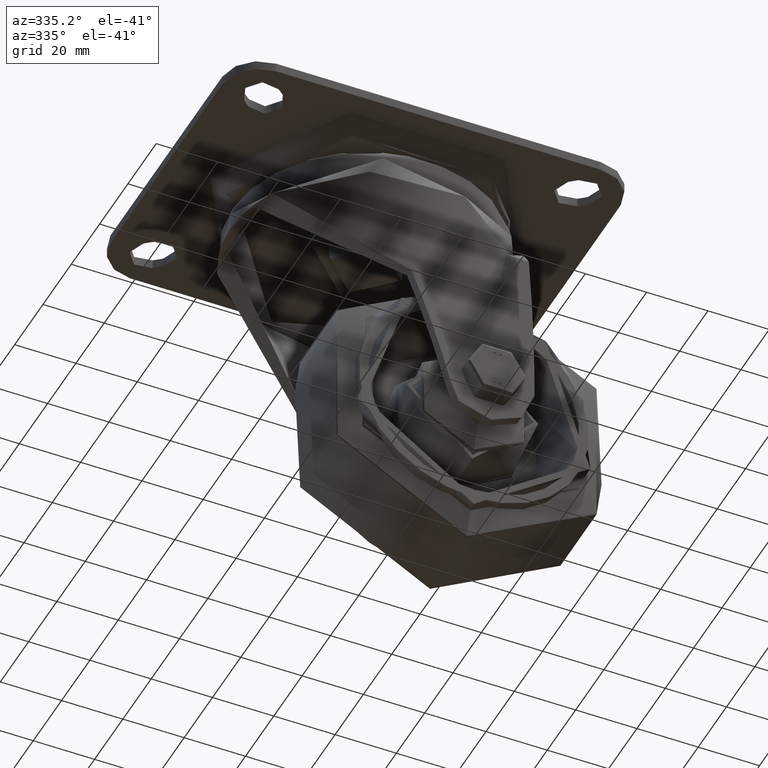
[diagram: clean part render]
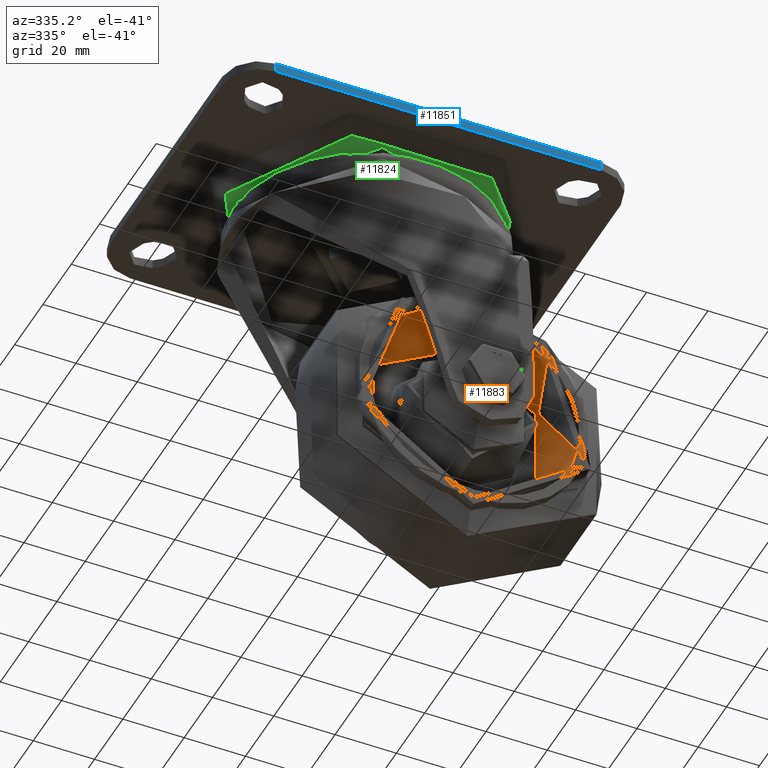
[diagram: same view with three faces highlighted in distinct colors, each labeled with its STEP entity id]
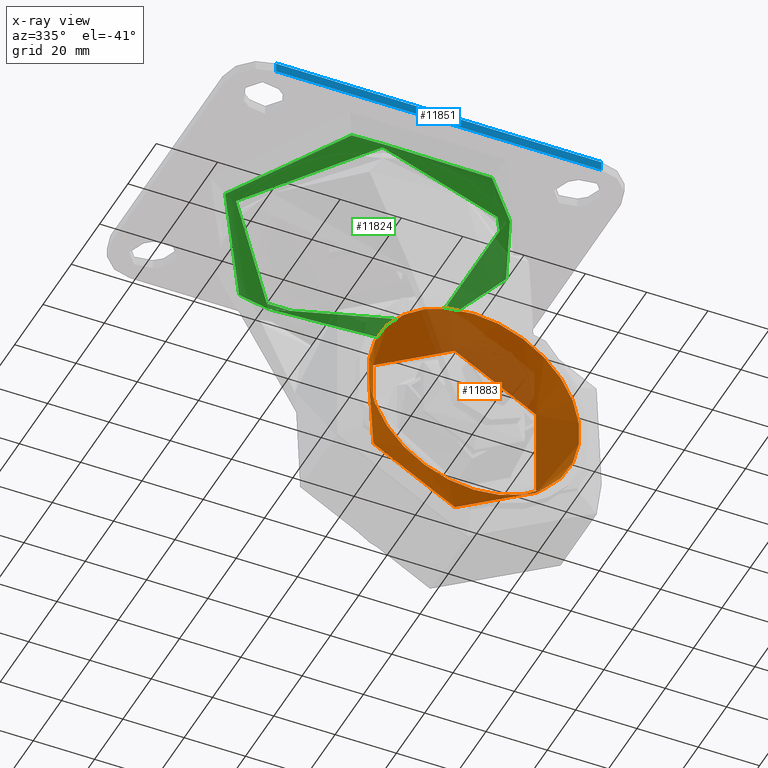
[diagram: x-ray of the same camera — body ghosted, the three highlighted faces saturated]
A machine part, auxiliary view with three faces highlighted in distinct colors.
The next image is the same camera in x-ray (body ghosted, the three faces saturated) — at least one of them is partly hidden behind the body in this view.
Their STEP definitions:

[orange] entity #11883 — the highlighted conical surface has half-angle 15.819 deg.
#368=CONICAL_SURFACE('',#12949,32.375,0.276097019395437);
#1544=LINE('',#17780,#2281);
#2281=VECTOR('',#14405,32.375);
#3243=FACE_OUTER_BOUND('',#4007,.T.);
#4007=EDGE_LOOP('',(#8713,#8714,#8715,#8716,#8717));
#4902=CIRCLE('',#12950,30.6621918756082);
#4903=CIRCLE('',#12951,34.5);
#4904=CIRCLE('',#12952,30.6621918756082);
#5390=VERTEX_POINT('',#17776);
#5391=VERTEX_POINT('',#17777);
#5392=VERTEX_POINT('',#17779);
#6665=EDGE_CURVE('',#5390,#5391,#4902,.T.);
#6666=EDGE_CURVE('',#5390,#5392,#1544,.T.);
#6667=EDGE_CURVE('',#5392,#5392,#4903,.T.);
#6668=EDGE_CURVE('',#5391,#5390,#4904,.T.);
#8713=ORIENTED_EDGE('',*,*,#6665,.F.);
#8714=ORIENTED_EDGE('',*,*,#6666,.T.);
#8715=ORIENTED_EDGE('',*,*,#6667,.T.);
#8716=ORIENTED_EDGE('',*,*,#6666,.F.);
#8717=ORIENTED_EDGE('',*,*,#6668,.F.);
#11883=ADVANCED_FACE('',(#3243),#368,.F.);
#12949=AXIS2_PLACEMENT_3D('',#17775,#14401,#14402);
#12950=AXIS2_PLACEMENT_3D('',#17778,#14403,#14404);
#12951=AXIS2_PLACEMENT_3D('',#17781,#14406,#14407);
#12952=AXIS2_PLACEMENT_3D('',#17782,#14408,#14409);
#14401=DIRECTION('center_axis',(0.,-1.,2.64786626507992E-17));
#14402=DIRECTION('ref_axis',(0.,2.64786626507992E-17,1.));
#14403=DIRECTION('center_axis',(-2.82876625880875E-17,-1.,-2.54588963292787E-16));
#14404=DIRECTION('ref_axis',(0.,2.54588963292787E-16,-1.));
#14405=DIRECTION('',(3.33841867797607E-17,-0.962126726315384,-0.272602572456026));
#14406=DIRECTION('center_axis',(0.,-1.,2.64786626507992E-17));
#14407=DIRECTION('ref_axis',(0.,2.64786626507992E-17,1.));
#14408=DIRECTION('center_axis',(-2.82876625880875E-17,-1.,-2.54588963292787E-16));
#14409=DIRECTION('ref_axis',(0.,2.54588963292787E-16,-1.));
#17775=CARTESIAN_POINT('Origin',(0.,-10.5,2.78025957833391E-16));
#17776=CARTESIAN_POINT('',(-3.75503551353056E-15,-4.45479485508794,-30.6621918756082));
#17777=CARTESIAN_POINT('',(-3.75503551353056E-15,-4.45479485508795,30.6621918756082));
#17778=CARTESIAN_POINT('Origin',(3.75503551353056E-15,-4.45479485508794,
1.73472347597681E-15));
#17779=CARTESIAN_POINT('',(-4.22503145705837E-15,-18.,-34.5));
#17780=CARTESIAN_POINT('',(3.96479401223956E-15,-10.5,-32.375));
#17781=CARTESIAN_POINT('Origin',(0.,-18.,4.76615927714385E-16));
#17782=CARTESIAN_POINT('Origin',(3.75503551353056E-15,-4.45479485508794,
1.73472347597681E-15));

[blue] entity #11851 — the highlighted planar face has unit normal (-0, -1, 0).
#622=PLANE('',#12870);
#1504=LINE('',#17574,#2241);
#1514=LINE('',#17592,#2251);
#1526=LINE('',#17613,#2263);
#1527=LINE('',#17616,#2264);
#2241=VECTOR('',#14179,1.);
#2251=VECTOR('',#14197,1.);
#2263=VECTOR('',#14223,1.);
#2264=VECTOR('',#14228,1.);
#3211=FACE_OUTER_BOUND('',#3973,.T.);
#3973=EDGE_LOOP('',(#8576,#8577,#8578,#8579));
#5345=VERTEX_POINT('',#17571);
#5346=VERTEX_POINT('',#17573);
#5349=VERTEX_POINT('',#17589);
#5350=VERTEX_POINT('',#17591);
#6578=EDGE_CURVE('',#5346,#5345,#1504,.T.);
#6591=EDGE_CURVE('',#5349,#5350,#1514,.T.);
#6605=EDGE_CURVE('',#5350,#5345,#1526,.T.);
#6606=EDGE_CURVE('',#5349,#5346,#1527,.T.);
#8576=ORIENTED_EDGE('',*,*,#6578,.T.);
#8577=ORIENTED_EDGE('',*,*,#6605,.F.);
#8578=ORIENTED_EDGE('',*,*,#6591,.F.);
#8579=ORIENTED_EDGE('',*,*,#6606,.T.);
#11851=ADVANCED_FACE('',(#3211),#622,.T.);
#12870=AXIS2_PLACEMENT_3D('',#17615,#14226,#14227);
#14179=DIRECTION('',(1.,2.09476042382105E-15,0.));
#14197=DIRECTION('',(1.,2.09476042382105E-15,0.));
#14223=DIRECTION('',(0.,0.,1.));
#14226=DIRECTION('center_axis',(-9.19185321820835E-45,1.,4.38802123320695E-30));
#14227=DIRECTION('ref_axis',(1.,-6.22301527786114E-60,2.09476042382105E-15));
#14228=DIRECTION('',(0.,0.,1.));
#17571=CARTESIAN_POINT('',(-28.0966939404109,246.778189306354,0.));
#17573=CARTESIAN_POINT('',(-134.096693940411,246.778189306354,0.));
#17574=CARTESIAN_POINT('',(-81.096693940411,246.778189306354,0.));
#17589=CARTESIAN_POINT('',(-134.096693940411,246.778189306354,-2.99999999999988));
#17591=CARTESIAN_POINT('',(-28.0966939404109,246.778189306354,-2.99999999999988));
#17592=CARTESIAN_POINT('',(-146.096693940411,246.778189306354,-2.99999999999988));
#17613=CARTESIAN_POINT('',(-28.0966939404109,246.778189306354,-3.));
#17615=CARTESIAN_POINT('Origin',(-81.096693940411,246.778189306354,-3.));
#17616=CARTESIAN_POINT('',(-134.096693940411,246.778189306354,-3.));

[green] entity #11824 — the highlighted toroidal blend (fillet) surface has major radius 42.2887 mm and minor (blend) radius 5 mm.
#3184=FACE_OUTER_BOUND('',#3929,.T.);
#3929=EDGE_LOOP('',(#8444,#8445,#8446,#8447,#8448));
#4826=CIRCLE('',#12812,42.2887260695938);
#4827=CIRCLE('',#12813,5.);
#4828=CIRCLE('',#12814,45.8493783442427);
#4829=CIRCLE('',#12815,45.8493783442427);
#5317=VERTEX_POINT('',#17433);
#5318=VERTEX_POINT('',#17435);
#5319=VERTEX_POINT('',#17437);
#6538=EDGE_CURVE('',#5317,#5317,#4826,.T.);
#6539=EDGE_CURVE('',#5317,#5318,#4827,.T.);
#6540=EDGE_CURVE('',#5319,#5318,#4828,.T.);
#6541=EDGE_CURVE('',#5318,#5319,#4829,.T.);
#8444=ORIENTED_EDGE('',*,*,#6538,.T.);
#8445=ORIENTED_EDGE('',*,*,#6539,.T.);
#8446=ORIENTED_EDGE('',*,*,#6540,.F.);
#8447=ORIENTED_EDGE('',*,*,#6541,.F.);
#8448=ORIENTED_EDGE('',*,*,#6539,.F.);
#11748=TOROIDAL_SURFACE('',#12811,42.2887260695938,5.);
#11824=ADVANCED_FACE('',(#3184),#11748,.T.);
#12811=AXIS2_PLACEMENT_3D('',#17432,#14074,#14075);
#12812=AXIS2_PLACEMENT_3D('',#17434,#14076,#14077);
#12813=AXIS2_PLACEMENT_3D('',#17436,#14078,#14079);
#12814=AXIS2_PLACEMENT_3D('',#17438,#14080,#14081);
#12815=AXIS2_PLACEMENT_3D('',#17439,#14082,#14083);
#14074=DIRECTION('center_axis',(0.,0.,-1.));
#14075=DIRECTION('ref_axis',(-1.,0.,0.));
#14076=DIRECTION('center_axis',(0.,0.,1.));
#14077=DIRECTION('ref_axis',(-1.,0.,0.));
#14078=DIRECTION('center_axis',(0.,-1.,0.));
#14079=DIRECTION('ref_axis',(1.,0.,0.));
#14080=DIRECTION('center_axis',(0.,0.,1.));
#14081=DIRECTION('ref_axis',(-1.,0.,0.));
#14082=DIRECTION('center_axis',(0.,0.,1.));
#14083=DIRECTION('ref_axis',(-1.,0.,0.));
#17432=CARTESIAN_POINT('Origin',(-81.096693940411,195.278189306354,-4.40000000000001));
#17433=CARTESIAN_POINT('',(-38.8079678708172,195.278189306354,-9.40000000000002));
#17434=CARTESIAN_POINT('Origin',(-81.096693940411,195.278189306354,-9.40000000000002));
#17435=CARTESIAN_POINT('',(-35.2473155961683,195.278189306354,-7.91023580105912));
#17436=CARTESIAN_POINT('Origin',(-38.8079678708172,195.278189306354,-4.40000000000001));
#17437=CARTESIAN_POINT('',(-126.946072288398,195.278189306354,-7.91023580475027));
#17438=CARTESIAN_POINT('Origin',(-81.096693940411,195.278189306354,-7.91023580105912));
#17439=CARTESIAN_POINT('Origin',(-81.096693940411,195.278189306354,-7.91023580105912));